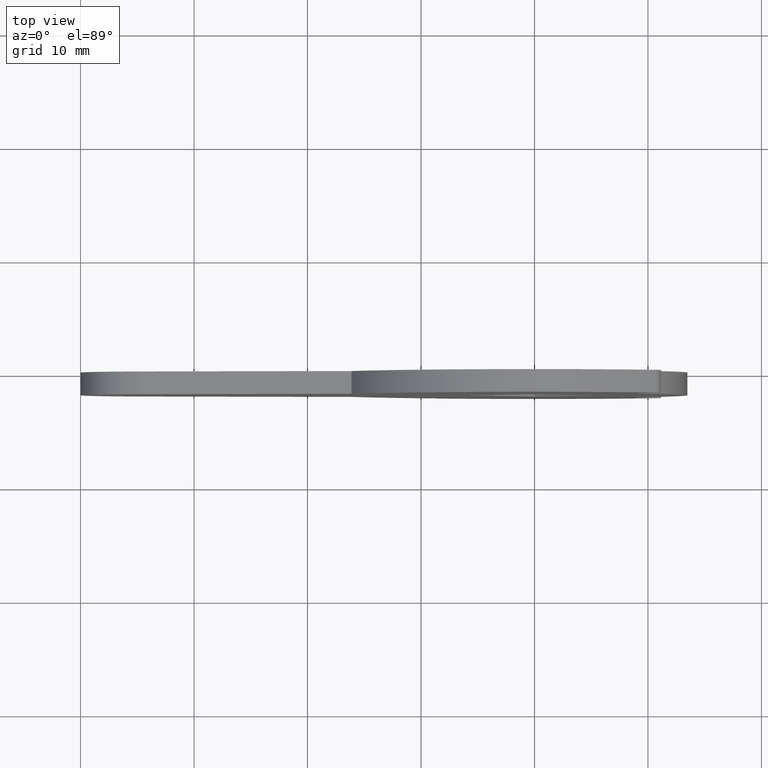
[diagram: clean part render]
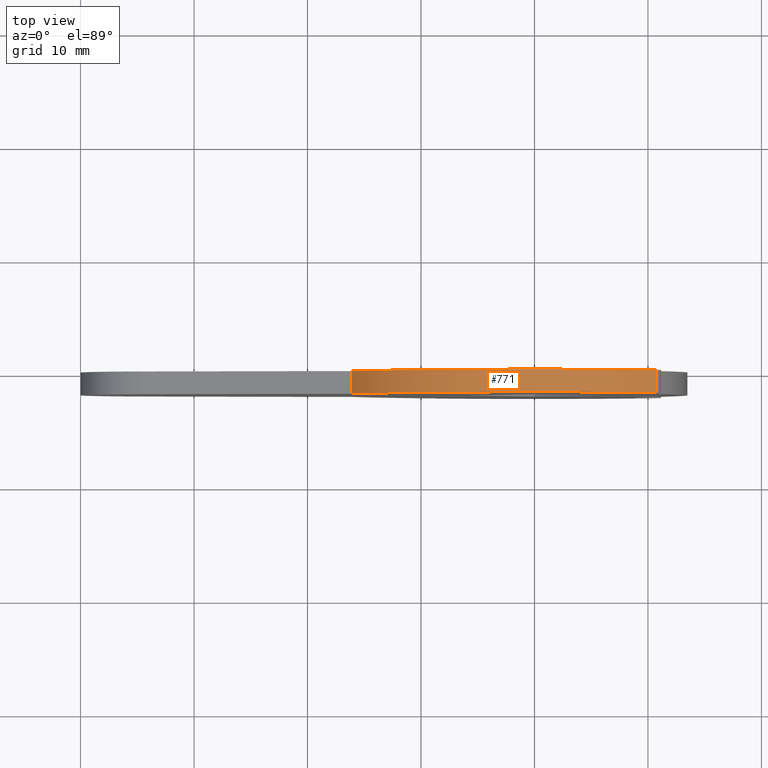
[diagram: same view with one face highlighted and labeled with its STEP entity id]
A machine part, top view. The second image highlights one B-rep face of the part: STEP entity #771.
In plain terms, the highlighted face is a freeform B-spline surface patch.
Its self-contained STEP definition (entity closure, byte-faithful):
#49=CARTESIAN_POINT('',(10.739072857427660,0.0,14.445526761286960));
#50=VERTEX_POINT('',#49);
#51=CARTESIAN_POINT('',(-16.124516390019298,0.0,7.999998199249760));
#52=VERTEX_POINT('',#51);
#53=CARTESIAN_POINT('',(10.739072857427670,0.0,14.445526761286979));
#54=CARTESIAN_POINT('',(3.984586888391954,0.0,19.466919151968000));
#55=CARTESIAN_POINT('',(-4.199630048120304,0.0,17.503235016676509));
#56=CARTESIAN_POINT('',(-12.383846984632562,0.0,15.539550881385031));
#57=CARTESIAN_POINT('',(-16.124516390019298,0.0,7.999998199249757));
#65=(BOUNDED_CURVE()B_SPLINE_CURVE(2,(#53,#54,#55,#56,#57),.UNSPECIFIED.,.F.,.U.)B_SPLINE_CURVE_WITH_KNOTS((3,2,3),(0.0,0.500000000000000,1.0),.UNSPECIFIED.)CURVE()GEOMETRIC_REPRESENTATION_ITEM()RATIONAL_B_SPLINE_CURVE((1.0,0.905864952288434,1.0,0.905864952288434,1.0))REPRESENTATION_ITEM(''));
#66=EDGE_CURVE('',#50,#52,#65,.T.);
#247=CARTESIAN_POINT('',(10.739072857427660,-2.0,14.445526761286960));
#248=VERTEX_POINT('',#247);
#249=CARTESIAN_POINT('',(-16.124516390019298,-2.0,7.999998199249760));
#250=VERTEX_POINT('',#249);
#251=CARTESIAN_POINT('',(10.739072857427670,-2.0,14.445526761286979));
#252=CARTESIAN_POINT('',(3.984586888391954,-2.000000000000000,19.466919151968000));
#253=CARTESIAN_POINT('',(-4.199630048120304,-2.0,17.503235016676509));
#254=CARTESIAN_POINT('',(-12.383846984632562,-2.000000000000000,15.539550881385031));
#255=CARTESIAN_POINT('',(-16.124516390019298,-2.0,7.999998199249757));
#263=(BOUNDED_CURVE()B_SPLINE_CURVE(2,(#251,#252,#253,#254,#255),.UNSPECIFIED.,.F.,.U.)B_SPLINE_CURVE_WITH_KNOTS((3,2,3),(0.0,0.500000000000000,1.0),.UNSPECIFIED.)CURVE()GEOMETRIC_REPRESENTATION_ITEM()RATIONAL_B_SPLINE_CURVE((1.0,0.905864952288434,1.0,0.905864952288434,1.0))REPRESENTATION_ITEM(''));
#264=EDGE_CURVE('',#248,#250,#263,.T.);
#455=CARTESIAN_POINT('',(10.739072857427660,-2.0,14.445526761286960));
#456=CARTESIAN_POINT('',(10.739072857427660,0.0,14.445526761286960));
#457=QUASI_UNIFORM_CURVE('',1,(#455,#456),.UNSPECIFIED.,.F.,.U.);
#458=EDGE_CURVE('',#248,#50,#457,.T.);
#743=CARTESIAN_POINT('',(-16.124516390019298,-2.0,7.999998199249760));
#744=CARTESIAN_POINT('',(-16.124516390019298,0.0,7.999998199249760));
#745=QUASI_UNIFORM_CURVE('',1,(#743,#744),.UNSPECIFIED.,.F.,.U.);
#746=EDGE_CURVE('',#250,#52,#745,.T.);
#751=CARTESIAN_POINT('',(11.113533219823561,-2.050000000000000,14.159461064645321));
#752=CARTESIAN_POINT('',(11.113533219823561,0.051250000000000,14.159461064645321));
#753=CARTESIAN_POINT('',(-7.339463558003121,-2.050000000000000,28.642870315628279));
#754=CARTESIAN_POINT('',(-7.339463558003121,0.051250000000000,28.642870315628279));
#755=CARTESIAN_POINT('',(-16.553375600924550,-2.050000000000000,7.070062003328093));
#756=CARTESIAN_POINT('',(-16.553375600924550,0.051250000000000,7.070062003328093));
#764=(BOUNDED_SURFACE()B_SPLINE_SURFACE(1,2,((#751,#753,#755),(#752,#754,#756)),.UNSPECIFIED.,.F.,.F.,.U.)B_SPLINE_SURFACE_WITH_KNOTS((2,2),(3,3),(0.0,2.101250000000000),(0.0,35.506529034866830),.UNSPECIFIED.)GEOMETRIC_REPRESENTATION_ITEM()RATIONAL_B_SPLINE_SURFACE(((1.0,0.608761429008720,1.0),(1.0,0.608761429008720,1.0)))REPRESENTATION_ITEM('')SURFACE());
#765=ORIENTED_EDGE('',*,*,#66,.T.);
#766=ORIENTED_EDGE('',*,*,#746,.F.);
#767=ORIENTED_EDGE('',*,*,#264,.F.);
#768=ORIENTED_EDGE('',*,*,#458,.T.);
#769=EDGE_LOOP('',(#765,#766,#767,#768));
#770=FACE_OUTER_BOUND('',#769,.T.);
#771=ADVANCED_FACE('',(#770),#764,.T.);